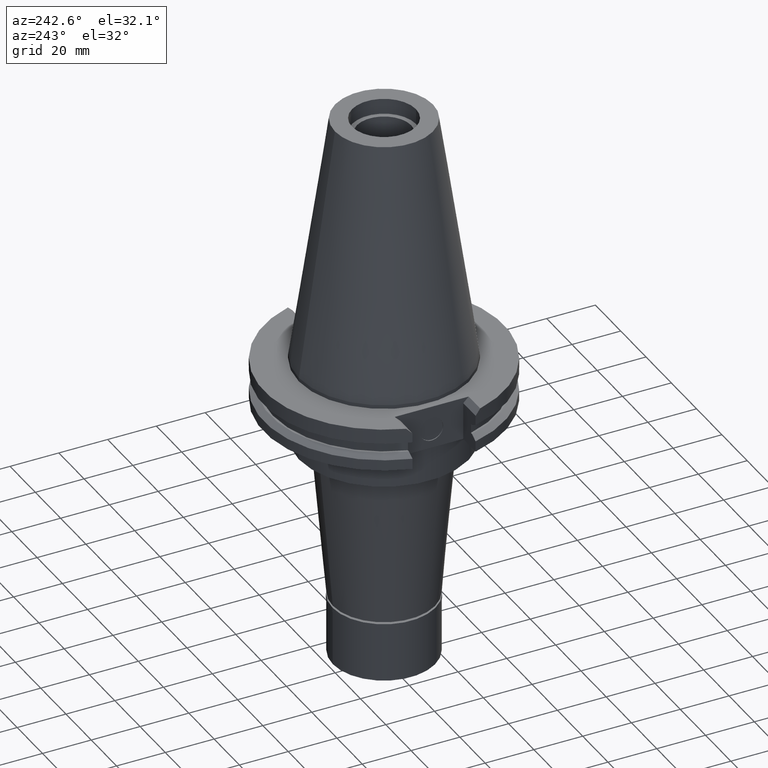
[diagram: clean part render]
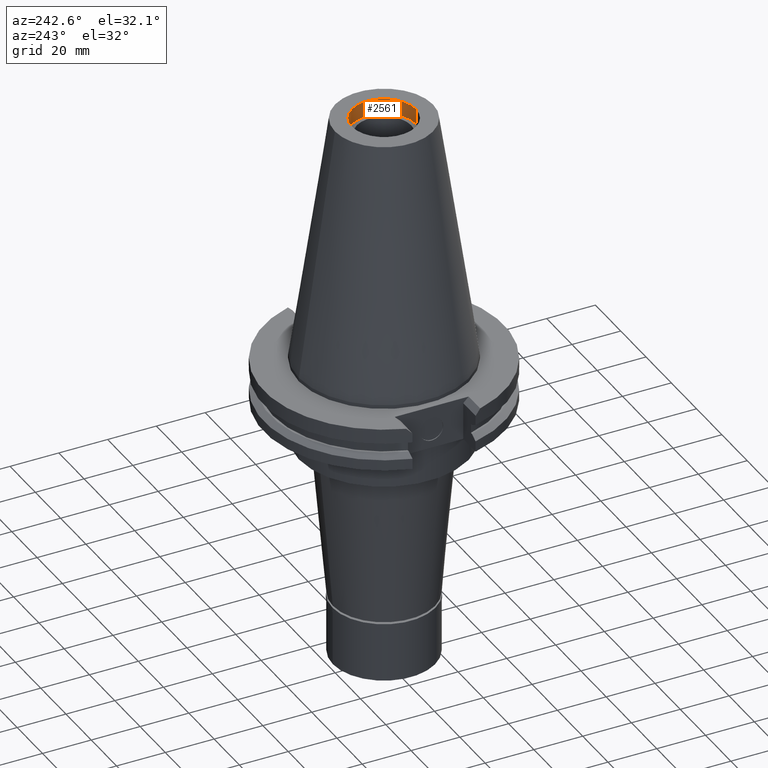
[diagram: same view with one face highlighted and labeled with its STEP entity id]
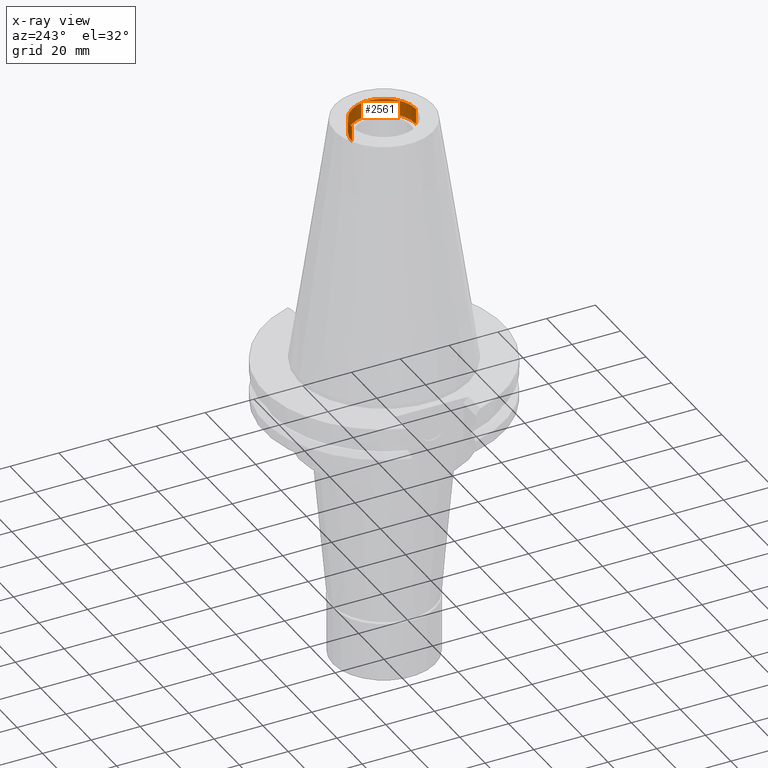
[diagram: x-ray of the same camera — body ghosted, the highlighted face saturated]
A machine part, auxiliary view. The second image highlights one B-rep face of the part: STEP entity #2561.
The next image is the same camera in x-ray: the body ghosted, the highlighted face saturated — about 0% of this face is hidden behind the body in this view.
In plain terms, the highlighted cylindrical surface (edge-blend (fillet) strip) has radius 13.115 mm, axis along (0, 0, -1).
Its self-contained STEP definition (entity closure, byte-faithful):
#1 = DIRECTION ( 'NONE',  ( 0.0000000000000000000, -1.000000000000000000, 0.0000000000000000000 ) ) ;
#6 = CARTESIAN_POINT ( 'NONE',  ( 0.0000000000000000000, 13.11500000000000021, 101.5999999999999943 ) ) ;
#52 = CARTESIAN_POINT ( 'NONE',  ( 0.0000000000000000000, 2.604272650726999704E-14, 101.5999999999999943 ) ) ;
#165 = AXIS2_PLACEMENT_3D ( 'NONE', #52, #2911, #1 ) ;
#220 = CARTESIAN_POINT ( 'NONE',  ( 0.0000000000000000000, -13.11500000000000021, 95.25000000000000000 ) ) ;
#287 = DIRECTION ( 'NONE',  ( 0.0000000000000000000, -1.000000000000000000, 0.0000000000000000000 ) ) ;
#411 = ORIENTED_EDGE ( 'NONE', *, *, #702, .T. ) ;
#463 = EDGE_LOOP ( 'NONE', ( #3166, #1558, #411, #2950 ) ) ;
#648 = DIRECTION ( 'NONE',  ( 0.0000000000000000000, 0.0000000000000000000, 1.000000000000000000 ) ) ;
#692 = DIRECTION ( 'NONE',  ( 0.0000000000000000000, 0.0000000000000000000, 1.000000000000000000 ) ) ;
#702 = EDGE_CURVE ( 'NONE', #1561, #3053, #1738, .T. ) ;
#773 = CARTESIAN_POINT ( 'NONE',  ( 0.0000000000000000000, 2.604272650726999704E-14, 112.6550000000000011 ) ) ;
#876 = CARTESIAN_POINT ( 'NONE',  ( 0.0000000000000000000, 2.604272650726999704E-14, 95.25000000000000000 ) ) ;
#1096 = DIRECTION ( 'NONE',  ( 0.0000000000000000000, 0.0000000000000000000, -1.000000000000000000 ) ) ;
#1103 = VECTOR ( 'NONE', #692, 1000.000000000000000 ) ;
#1154 = AXIS2_PLACEMENT_3D ( 'NONE', #876, #1096, #2405 ) ;
#1204 = EDGE_CURVE ( 'NONE', #2623, #3053, #3108, .T. ) ;
#1388 = EDGE_CURVE ( 'NONE', #2623, #2452, #1754, .T. ) ;
#1470 = LINE ( 'NONE', #2737, #2188 ) ;
#1558 = ORIENTED_EDGE ( 'NONE', *, *, #1597, .T. ) ;
#1561 = VERTEX_POINT ( 'NONE', #3007 ) ;
#1564 = AXIS2_PLACEMENT_3D ( 'NONE', #773, #2814, #287 ) ;
#1597 = EDGE_CURVE ( 'NONE', #2452, #1561, #1470, .T. ) ;
#1738 = CIRCLE ( 'NONE', #165, 13.11500000000000021 ) ;
#1754 = CIRCLE ( 'NONE', #1154, 13.11500000000000021 ) ;
#1793 = CARTESIAN_POINT ( 'NONE',  ( 0.0000000000000000000, 13.11500000000000021, 95.25000000000000000 ) ) ;
#2188 = VECTOR ( 'NONE', #648, 1000.000000000000000 ) ;
#2297 = CYLINDRICAL_SURFACE ( 'NONE', #1564, 13.11500000000000021 ) ;
#2405 = DIRECTION ( 'NONE',  ( 0.0000000000000000000, 1.000000000000000000, 0.0000000000000000000 ) ) ;
#2452 = VERTEX_POINT ( 'NONE', #220 ) ;
#2561 = ADVANCED_FACE ( 'NONE', ( #2855 ), #2297, .F. ) ;
#2623 = VERTEX_POINT ( 'NONE', #2883 ) ;
#2737 = CARTESIAN_POINT ( 'NONE',  ( 0.0000000000000000000, -13.11500000000000021, 95.25000000000000000 ) ) ;
#2814 = DIRECTION ( 'NONE',  ( 0.0000000000000000000, 0.0000000000000000000, -1.000000000000000000 ) ) ;
#2855 = FACE_OUTER_BOUND ( 'NONE', #463, .T. ) ;
#2883 = CARTESIAN_POINT ( 'NONE',  ( 0.0000000000000000000, 13.11500000000000021, 95.25000000000000000 ) ) ;
#2911 = DIRECTION ( 'NONE',  ( 0.0000000000000000000, 0.0000000000000000000, 1.000000000000000000 ) ) ;
#2950 = ORIENTED_EDGE ( 'NONE', *, *, #1204, .F. ) ;
#3007 = CARTESIAN_POINT ( 'NONE',  ( 0.0000000000000000000, -13.11500000000000021, 101.5999999999999943 ) ) ;
#3053 = VERTEX_POINT ( 'NONE', #6 ) ;
#3108 = LINE ( 'NONE', #1793, #1103 ) ;
#3166 = ORIENTED_EDGE ( 'NONE', *, *, #1388, .T. ) ;